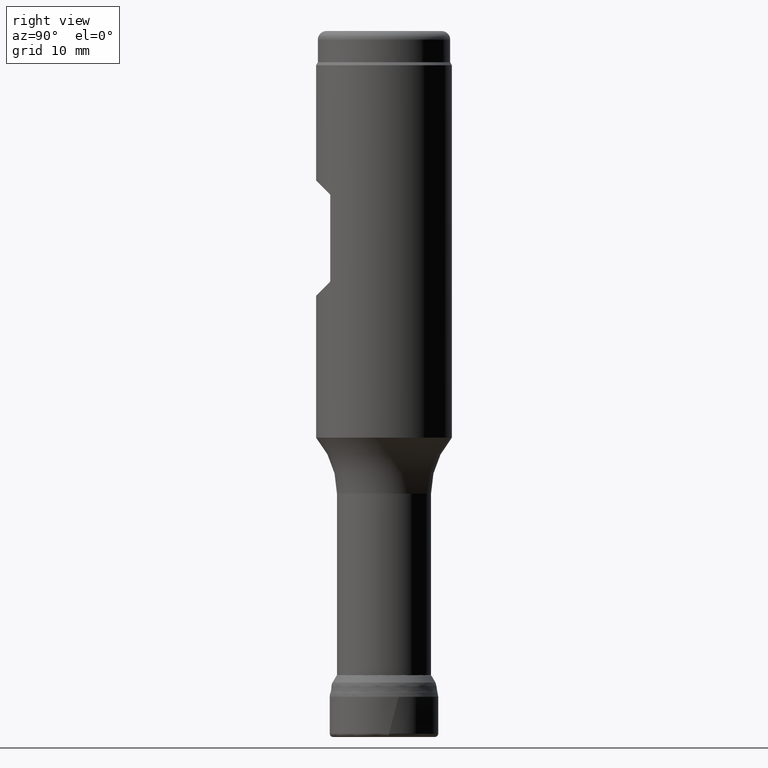
[diagram: clean part render]
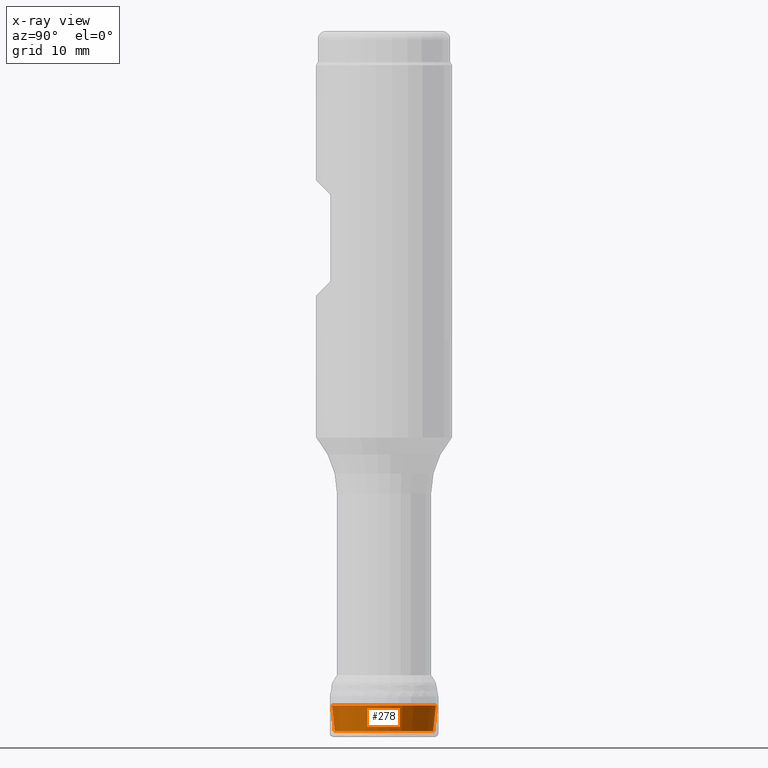
[diagram: x-ray — body ghosted, one internal face saturated and labeled with its STEP entity id]
A machine part, right view, then the same camera in x-ray: the body is ghosted and one INTERNAL B-rep face — a face not visible from any outside direction — is saturated and labeled: STEP entity #278.
In plain terms, the highlighted conical surface has half-angle 6 deg.
Its self-contained STEP definition (entity closure, byte-faithful):
#192=CONICAL_SURFACE('',#707,6.11177874000351,5.99999999999997);
#199=FACE_BOUND('',#336,.T.);
#200=FACE_BOUND('',#337,.T.);
#278=ADVANCED_FACE('',(#199,#200),#192,.T.);
#336=EDGE_LOOP('',(#420));
#337=EDGE_LOOP('',(#421));
#420=ORIENTED_EDGE('',*,*,#570,.T.);
#421=ORIENTED_EDGE('',*,*,#571,.T.);
#522=VERTEX_POINT('',#1178);
#523=VERTEX_POINT('',#1180);
#570=EDGE_CURVE('',#522,#522,#621,.T.);
#571=EDGE_CURVE('',#523,#523,#622,.T.);
#621=CIRCLE('',#705,6.07866737569825);
#622=CIRCLE('',#706,5.76273748678773);
#705=AXIS2_PLACEMENT_3D('',#1177,#777,#778);
#706=AXIS2_PLACEMENT_3D('',#1179,#779,#780);
#707=AXIS2_PLACEMENT_3D('',#1181,#781,#782);
#777=DIRECTION('',(0.,-1.17145536458252E-15,-1.));
#778=DIRECTION('',(0.,1.,-1.14151564397948E-15));
#779=DIRECTION('',(0.,1.17145536458252E-15,1.));
#780=DIRECTION('',(0.,1.,-1.16646879800127E-15));
#781=DIRECTION('',(0.,1.17145536458252E-15,1.));
#782=DIRECTION('',(0.,-1.,2.02771205112124E-15));
#1177=CARTESIAN_POINT('',(0.,4.31677367213957E-15,3.6849664124232));
#1178=CARTESIAN_POINT('',(0.,6.07866737569825,3.68496641242319));
#1179=CARTESIAN_POINT('',(0.,7.95528669398471E-16,0.679094307346466));
#1180=CARTESIAN_POINT('',(0.,5.76273748678773,0.679094307346459));
#1181=CARTESIAN_POINT('',(0.,4.6858214583301E-15,4.));